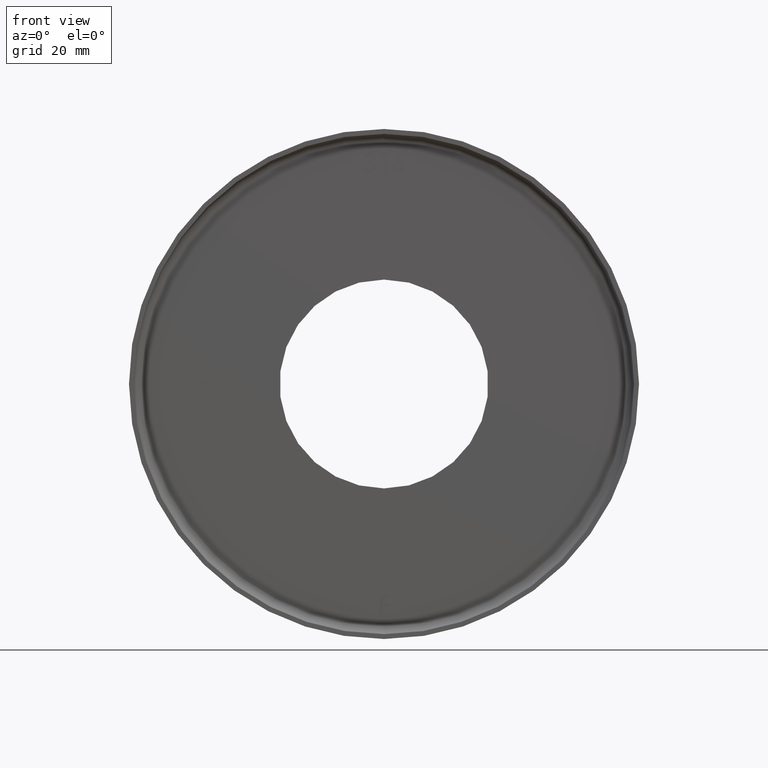
[diagram: clean part render]
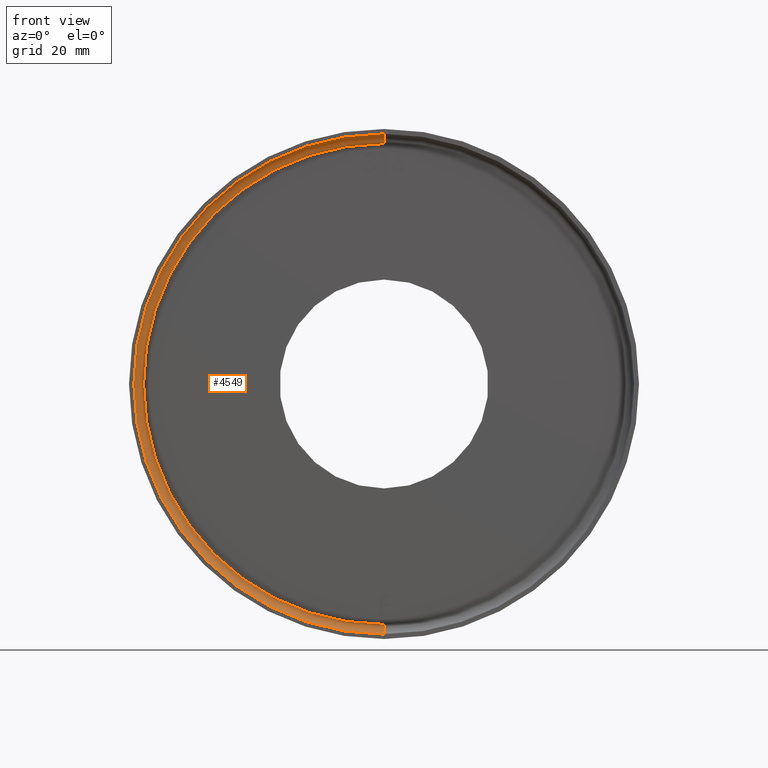
[diagram: same view with one face highlighted and labeled with its STEP entity id]
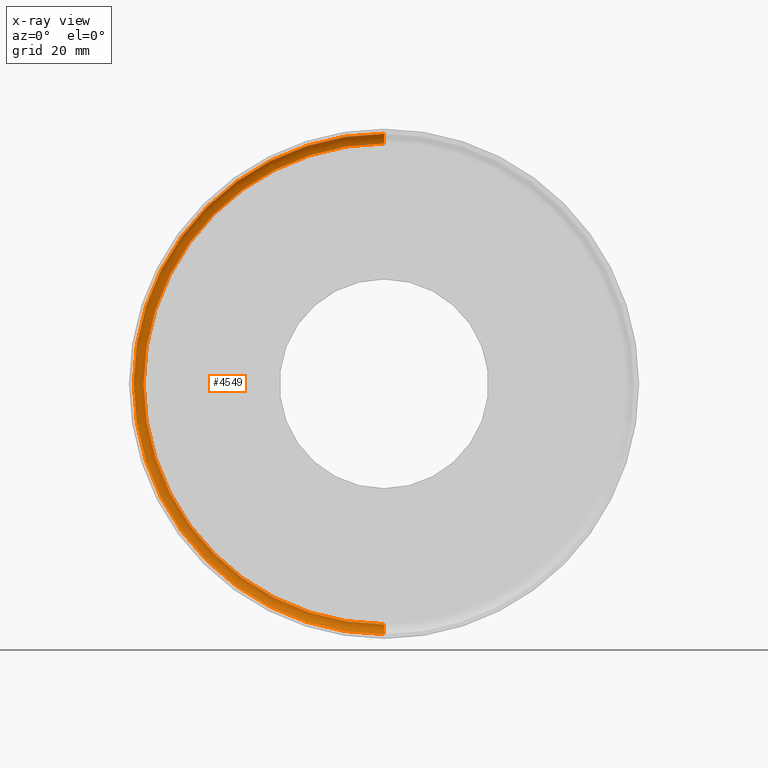
[diagram: x-ray of the same camera — body ghosted, the highlighted face saturated]
A machine part, front view. The second image highlights one B-rep face of the part: STEP entity #4549.
The next image is the same camera in x-ray: the body ghosted, the highlighted face saturated — about 0% of this face is hidden behind the body in this view.
In plain terms, the highlighted toroidal blend (fillet) surface has major radius 49.5 mm and minor (blend) radius 2 mm.
Its self-contained STEP definition (entity closure, byte-faithful):
#401 = EDGE_LOOP ( 'NONE', ( #5445, #6632, #654, #4487 ) ) ;
#654 = ORIENTED_EDGE ( 'NONE', *, *, #5208, .T. ) ;
#1250 = CARTESIAN_POINT ( 'NONE',  ( 0.000000000000000000, 24.00000000000000000, 0.000000000000000000 ) ) ;
#1351 = VERTEX_POINT ( 'NONE', #6151 ) ;
#2134 = DIRECTION ( 'NONE',  ( -0.000000000000000000, -1.000000000000000000, -0.000000000000000000 ) ) ;
#3228 = FACE_OUTER_BOUND ( 'NONE', #401, .T. ) ;
#3382 = DIRECTION ( 'NONE',  ( 0.000000000000000000, 0.000000000000000000, -1.000000000000000000 ) ) ;
#4075 = CIRCLE ( 'NONE', #13437, 49.50000000000000000 ) ;
#4487 = ORIENTED_EDGE ( 'NONE', *, *, #6344, .F. ) ;
#4530 = DIRECTION ( 'NONE',  ( -0.000000000000000000, -1.000000000000000000, -0.000000000000000000 ) ) ;
#4549 = ADVANCED_FACE ( 'NONE', ( #3228 ), #5789, .F. ) ;
#4598 = DIRECTION ( 'NONE',  ( -1.224646799147353454E-16, 0.000000000000000000, -1.000000000000000000 ) ) ;
#4737 = CARTESIAN_POINT ( 'NONE',  ( 0.000000000000000000, 22.00000000000000355, 0.000000000000000000 ) ) ;
#4809 = EDGE_CURVE ( 'NONE', #12615, #11562, #10564, .T. ) ;
#4835 = AXIS2_PLACEMENT_3D ( 'NONE', #5591, #8968, #4598 ) ;
#5208 = EDGE_CURVE ( 'NONE', #11562, #8825, #5438, .T. ) ;
#5438 = CIRCLE ( 'NONE', #7126, 51.50000000000000711 ) ;
#5445 = ORIENTED_EDGE ( 'NONE', *, *, #13498, .F. ) ;
#5591 = CARTESIAN_POINT ( 'NONE',  ( 6.062001655779398511E-15, 22.00000000000000355, 49.50000000000000000 ) ) ;
#5789 = TOROIDAL_SURFACE ( 'NONE', #12207, 49.50000000000000000, 2.000000000000000000 ) ;
#6151 = CARTESIAN_POINT ( 'NONE',  ( 0.000000000000000000, 24.00000000000000000, -49.50000000000000000 ) ) ;
#6344 = EDGE_CURVE ( 'NONE', #1351, #8825, #10189, .T. ) ;
#6540 = DIRECTION ( 'NONE',  ( 0.000000000000000000, 0.000000000000000000, -1.000000000000000000 ) ) ;
#6632 = ORIENTED_EDGE ( 'NONE', *, *, #4809, .T. ) ;
#7126 = AXIS2_PLACEMENT_3D ( 'NONE', #4737, #2134, #6540 ) ;
#7419 = DIRECTION ( 'NONE',  ( -1.000000000000000000, 0.000000000000000000, 0.000000000000000000 ) ) ;
#8547 = CARTESIAN_POINT ( 'NONE',  ( 0.000000000000000000, 22.00000000000000355, -49.50000000000000000 ) ) ;
#8805 = DIRECTION ( 'NONE',  ( 0.000000000000000000, 0.000000000000000000, -1.000000000000000000 ) ) ;
#8825 = VERTEX_POINT ( 'NONE', #13433 ) ;
#8968 = DIRECTION ( 'NONE',  ( 1.000000000000000000, 0.000000000000000000, -1.224646799147353207E-16 ) ) ;
#9404 = DIRECTION ( 'NONE',  ( -0.000000000000000000, -1.000000000000000000, -0.000000000000000000 ) ) ;
#10189 = CIRCLE ( 'NONE', #11604, 2.000000000000001776 ) ;
#10564 = CIRCLE ( 'NONE', #4835, 2.000000000000001776 ) ;
#11562 = VERTEX_POINT ( 'NONE', #12534 ) ;
#11604 = AXIS2_PLACEMENT_3D ( 'NONE', #8547, #7419, #11797 ) ;
#11797 = DIRECTION ( 'NONE',  ( 0.000000000000000000, 0.000000000000000000, 1.000000000000000000 ) ) ;
#12207 = AXIS2_PLACEMENT_3D ( 'NONE', #13747, #9404, #3382 ) ;
#12534 = CARTESIAN_POINT ( 'NONE',  ( 6.306931015608869596E-15, 22.00000000000000355, 51.50000000000000711 ) ) ;
#12615 = VERTEX_POINT ( 'NONE', #13610 ) ;
#13433 = CARTESIAN_POINT ( 'NONE',  ( 0.000000000000000000, 22.00000000000000355, -51.50000000000000711 ) ) ;
#13437 = AXIS2_PLACEMENT_3D ( 'NONE', #1250, #4530, #8805 ) ;
#13498 = EDGE_CURVE ( 'NONE', #12615, #1351, #4075, .T. ) ;
#13610 = CARTESIAN_POINT ( 'NONE',  ( 6.184466335694133659E-15, 24.00000000000000000, 49.50000000000000000 ) ) ;
#13747 = CARTESIAN_POINT ( 'NONE',  ( 0.000000000000000000, 22.00000000000000355, 0.000000000000000000 ) ) ;